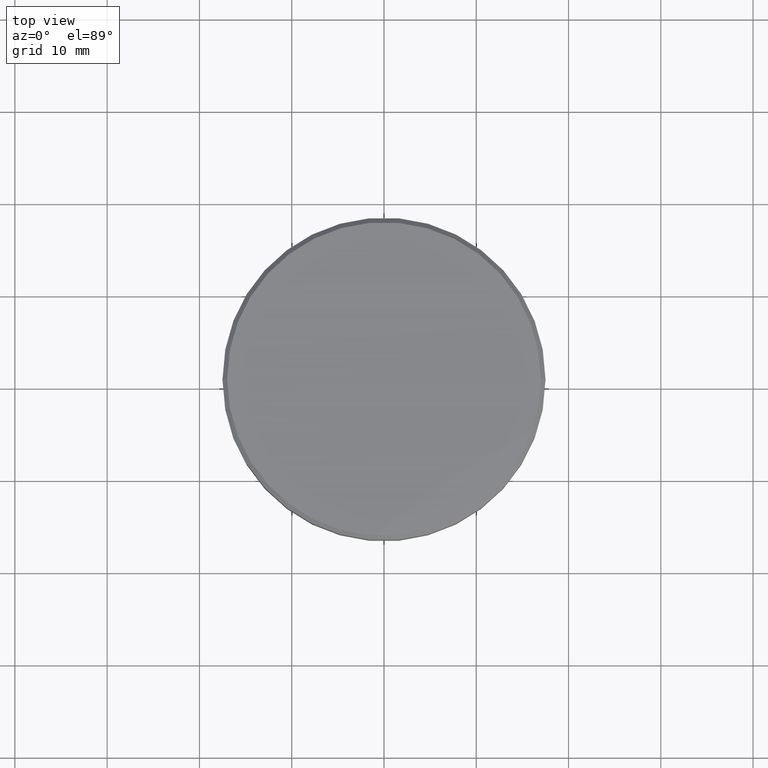
[diagram: clean part render]
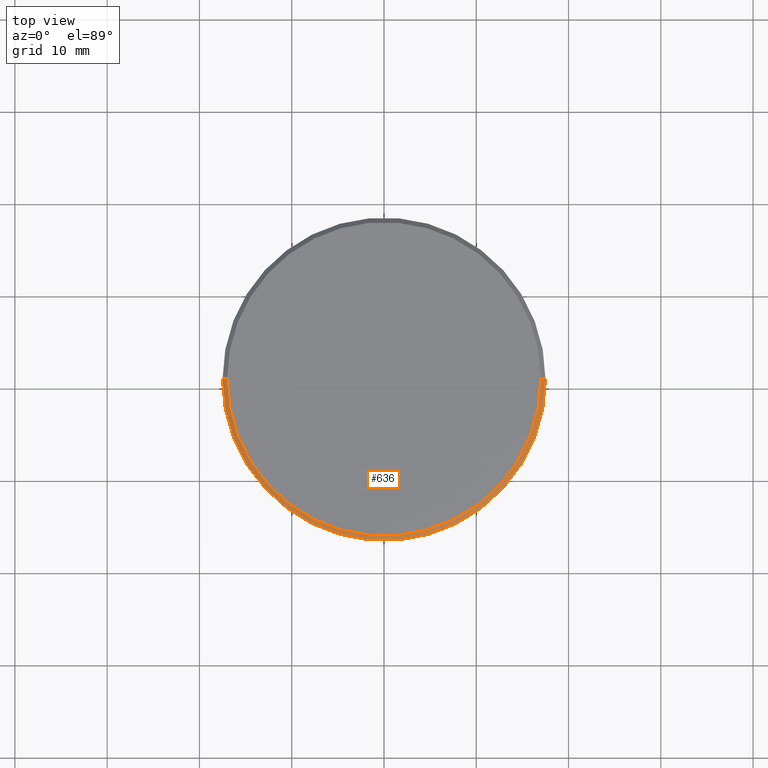
[diagram: same view with one face highlighted and labeled with its STEP entity id]
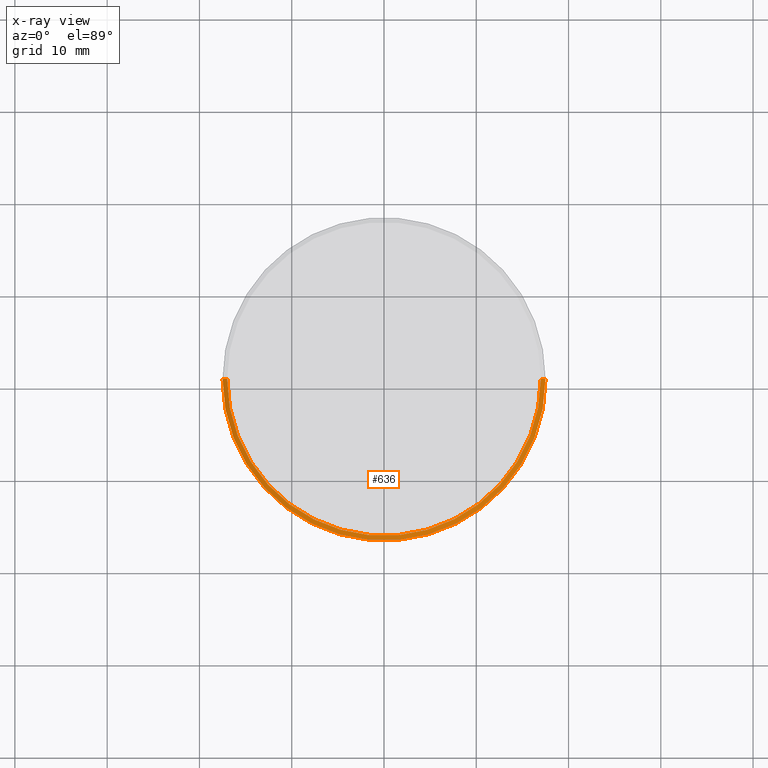
[diagram: x-ray of the same camera — body ghosted, the highlighted face saturated]
A machine part, top view. The second image highlights one B-rep face of the part: STEP entity #636.
The next image is the same camera in x-ray: the body ghosted, the highlighted face saturated — about 0% of this face is hidden behind the body in this view.
In plain terms, the highlighted conical surface has half-angle 45 deg.
Its self-contained STEP definition (entity closure, byte-faithful):
#5 = DIRECTION ( 'NONE',  ( 1.000000000000000000, 0.000000000000000000, 0.000000000000000000 ) ) ;
#32 = CARTESIAN_POINT ( 'NONE',  ( 0.000000000000000000, 0.000000000000000000, 0.000000000000000000 ) ) ;
#44 = VERTEX_POINT ( 'NONE', #47 ) ;
#47 = CARTESIAN_POINT ( 'NONE',  ( -17.50000000000000000, 2.143131898507868248E-15, -0.5000000000000073275 ) ) ;
#112 = LINE ( 'NONE', #1112, #1180 ) ;
#131 = ORIENTED_EDGE ( 'NONE', *, *, #1147, .F. ) ;
#171 = CIRCLE ( 'NONE', #646, 17.50000000000000000 ) ;
#235 = AXIS2_PLACEMENT_3D ( 'NONE', #32, #330, #679 ) ;
#246 = CARTESIAN_POINT ( 'NONE',  ( 0.000000000000000000, 0.000000000000000000, 0.000000000000000000 ) ) ;
#269 = CONICAL_SURFACE ( 'NONE', #455, 16.99999999999999289, 0.7853981633974482790 ) ;
#300 = CARTESIAN_POINT ( 'NONE',  ( 0.000000000000000000, 0.000000000000000000, -0.5000000000000073275 ) ) ;
#330 = DIRECTION ( 'NONE',  ( -0.000000000000000000, -0.000000000000000000, 1.000000000000000000 ) ) ;
#352 = CARTESIAN_POINT ( 'NONE',  ( -16.99999999999999289, 0.000000000000000000, 0.000000000000000000 ) ) ;
#423 = CARTESIAN_POINT ( 'NONE',  ( 17.50000000000000000, 0.000000000000000000, -0.5000000000000073275 ) ) ;
#455 = AXIS2_PLACEMENT_3D ( 'NONE', #246, #508, #857 ) ;
#474 = DIRECTION ( 'NONE',  ( 0.7071067811865474617, 8.659560562354932858E-17, -0.7071067811865474617 ) ) ;
#485 = DIRECTION ( 'NONE',  ( -0.7071067811865474617, 0.000000000000000000, -0.7071067811865474617 ) ) ;
#487 = ORIENTED_EDGE ( 'NONE', *, *, #966, .F. ) ;
#508 = DIRECTION ( 'NONE',  ( 0.000000000000000000, 0.000000000000000000, -1.000000000000000000 ) ) ;
#636 = ADVANCED_FACE ( 'NONE', ( #691 ), #269, .T. ) ;
#646 = AXIS2_PLACEMENT_3D ( 'NONE', #300, #929, #5 ) ;
#647 = ORIENTED_EDGE ( 'NONE', *, *, #1105, .F. ) ;
#653 = EDGE_CURVE ( 'NONE', #779, #44, #772, .T. ) ;
#679 = DIRECTION ( 'NONE',  ( 1.000000000000000000, 0.000000000000000000, 0.000000000000000000 ) ) ;
#691 = FACE_OUTER_BOUND ( 'NONE', #1156, .T. ) ;
#741 = VERTEX_POINT ( 'NONE', #776 ) ;
#746 = VERTEX_POINT ( 'NONE', #423 ) ;
#772 = LINE ( 'NONE', #1118, #797 ) ;
#776 = CARTESIAN_POINT ( 'NONE',  ( 16.99999999999999289, 2.112515728529184067E-15, 0.000000000000000000 ) ) ;
#779 = VERTEX_POINT ( 'NONE', #352 ) ;
#797 = VECTOR ( 'NONE', #485, 1000.000000000000114 ) ;
#854 = ORIENTED_EDGE ( 'NONE', *, *, #653, .T. ) ;
#857 = DIRECTION ( 'NONE',  ( -1.000000000000000000, 0.000000000000000000, 0.000000000000000000 ) ) ;
#929 = DIRECTION ( 'NONE',  ( 0.000000000000000000, 0.000000000000000000, -1.000000000000000000 ) ) ;
#966 = EDGE_CURVE ( 'NONE', #779, #741, #989, .T. ) ;
#989 = CIRCLE ( 'NONE', #235, 16.99999999999999289 ) ;
#1105 = EDGE_CURVE ( 'NONE', #741, #746, #112, .T. ) ;
#1112 = CARTESIAN_POINT ( 'NONE',  ( 16.99999999999999289, 2.081899558550499885E-15, 0.000000000000000000 ) ) ;
#1118 = CARTESIAN_POINT ( 'NONE',  ( -16.99999999999999289, 0.000000000000000000, 0.000000000000000000 ) ) ;
#1147 = EDGE_CURVE ( 'NONE', #746, #44, #171, .T. ) ;
#1156 = EDGE_LOOP ( 'NONE', ( #647, #487, #854, #131 ) ) ;
#1180 = VECTOR ( 'NONE', #474, 1000.000000000000114 ) ;